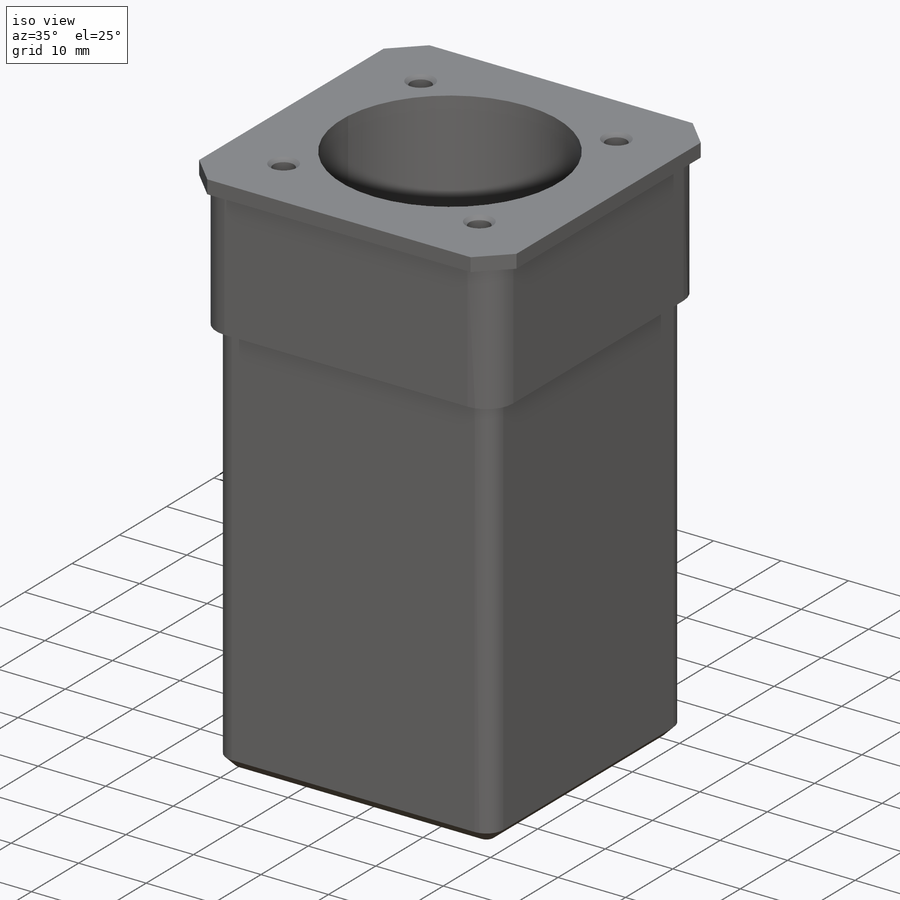
[diagram: iso view]
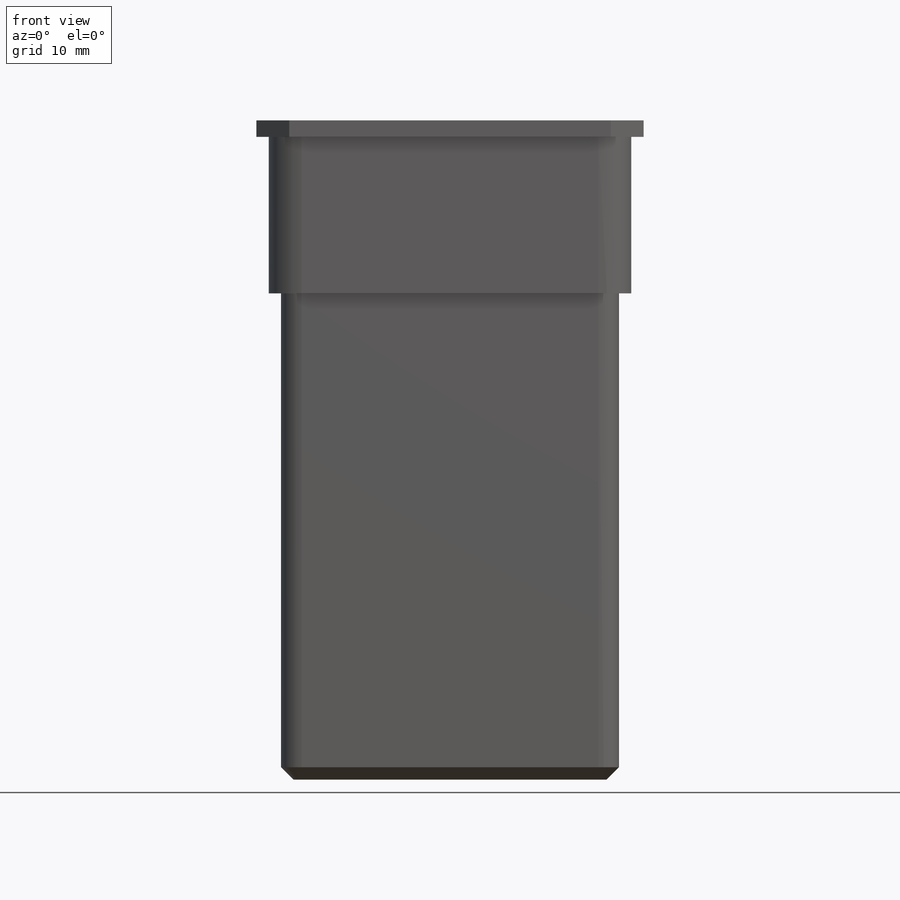
[diagram: front view]
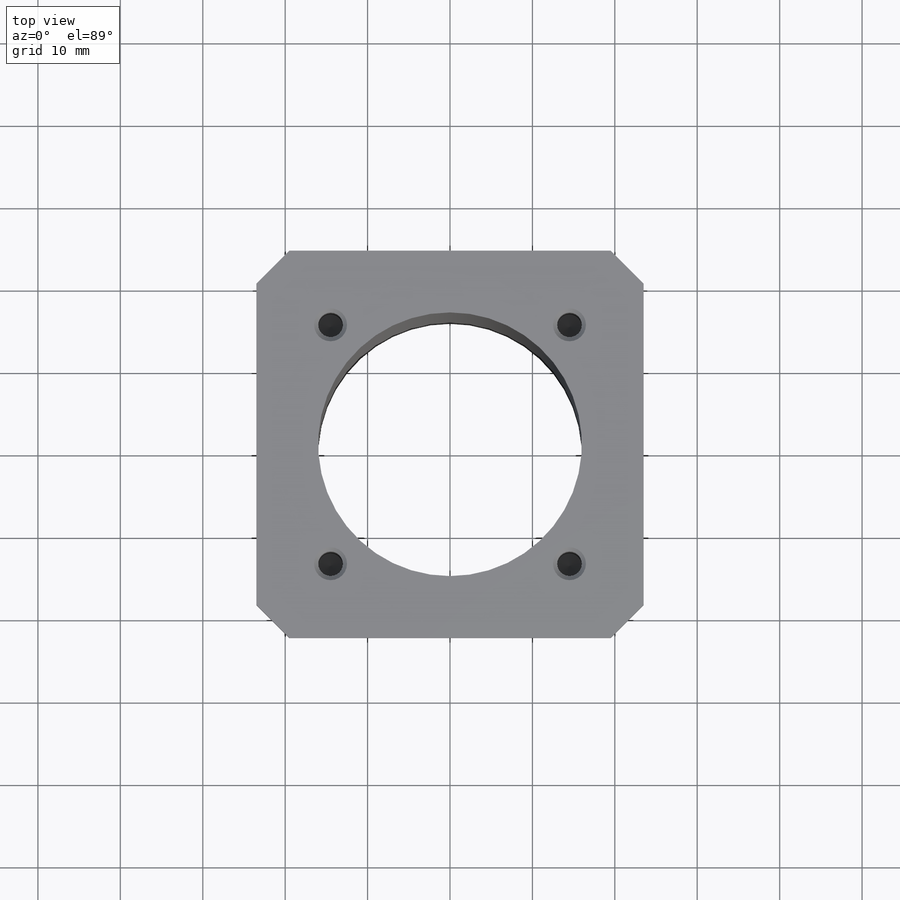
[diagram: top view]
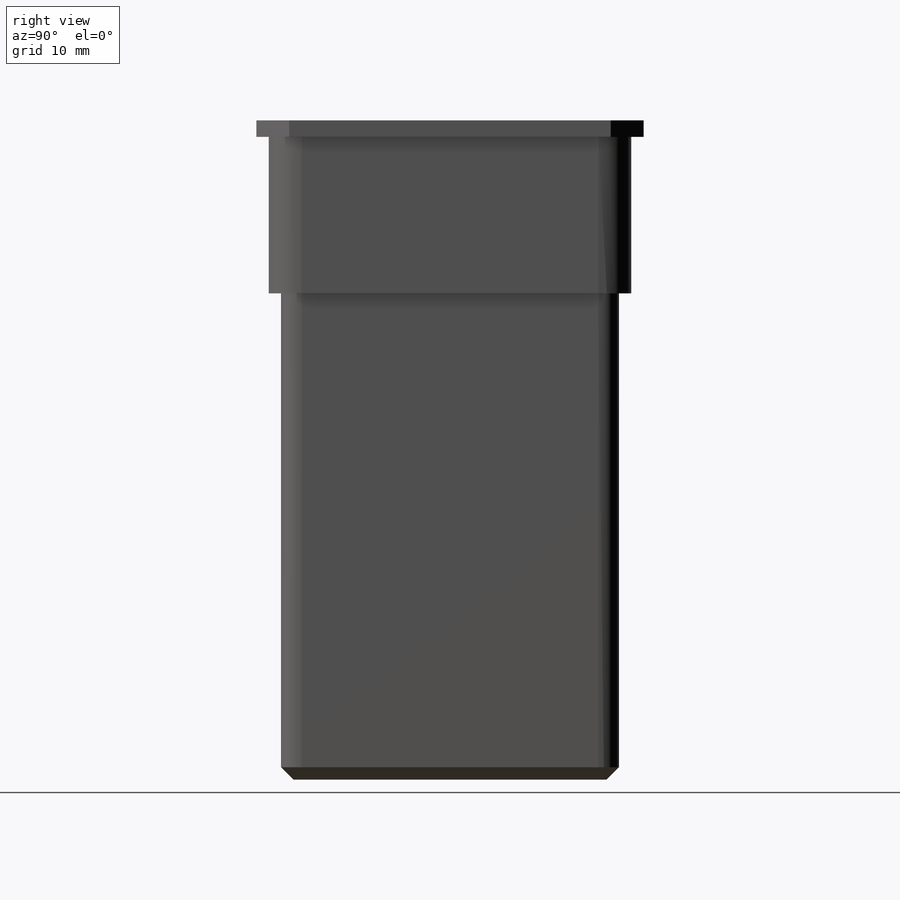
[diagram: right view]
SOLIDWORKS PART (.sldprt)
format: sldprt  version: not decoded by parser v0  size: 347,648 bytes
history: native  units: mm
features: sketch x8, thread x8, material x4, extrude x3, fillet x2, chamfer x2, plane x1, cut_extrude x1, hole x1 + 1 further entry (+10 scaffold rows collapsed)
feature tree (41):
  scaffold x10  (default folders/planes/origin — collapsed)
  material  "Ст 3 ГОСТ 380-2005"
  material  "PTricksFreeParameters"
  material  "PTricksEqu"
  material  "PTricksFreeParameters"
  plane  "Спереди"
  "Начало координат"
  sketch  "Эскиз1"  dims[D1=41.0mm]
  extrude  "Вытянуть1"  Depth=59mm
  sketch  "Эскиз2"  dims[D1=44.0mm]
  extrude  "Вытянуть2"  Depth=19mm
  sketch  "Эскиз3"  dims[D1=47.0mm D2=1.5mm]
  extrude  "Вытянуть3"  Depth=2mm
  fillet  "Скругление1"  Radius=2.5mm
  fillet  "Скругление2"  Radius=4mm
  chamfer  "Фаска1"  Distance=1.5mm Angle=45deg
  chamfer  "Фаска2"  Distance=4mm Angle=45deg
  sketch  "Эскиз4"  dims[D1=32.0mm]
  cut_extrude  "Вытянуть4"  [1 undecoded]
  sketch  "Эскиз5"  dims[D1=~9.005051mm D2=41.0mm]
  sketch  "Эскиз8"
  hole  "Отверстие обработанное метчиком M4x0.71"  [1 undecoded]
  sketch  "Трехмерный эскиз1"
  sketch  "Эскиз7"  dims[hole-wizard template sketch: 39 standard entries collapsed; hole parameters kept: c13.Диаметр сверла=3.0mm c13.Глубина сверла=14.0mm c13.Диаметр передней зенковки=4.0mm c13.D4=~33.297463mm c13.Угол передней зенковки=90.0deg c14.D5=~14.816244mm c14.Угол заточки сверла=118.0deg]
  thread  "Отверстие резьбы1"  Diameter=10mm  [1 undecoded]
  thread  "Отверстие резьбы2"  Diameter=10mm  [1 undecoded]
  thread  "Отверстие резьбы3"  Diameter=10mm  [1 undecoded]
  thread  "Отверстие резьбы4"  Diameter=10mm  [1 undecoded]
  thread  "Отверстие резьбы5"  Diameter=12mm  [1 undecoded]
  thread  "Отверстие резьбы6"  Diameter=12mm  [1 undecoded]
  thread  "Отверстие резьбы7"  Diameter=12mm  [1 undecoded]
  thread  "Отверстие резьбы8"  Diameter=12mm  [1 undecoded]
decode coverage: 21 of 25 modeling features carry decoded parameters; 1 rows unclassified (native names shown)
note: ~ marks probable driven/reference dimensions
note: 10 parameter values undecoded
note: suppression state not decoded; provenance and decode notes live in map.json
